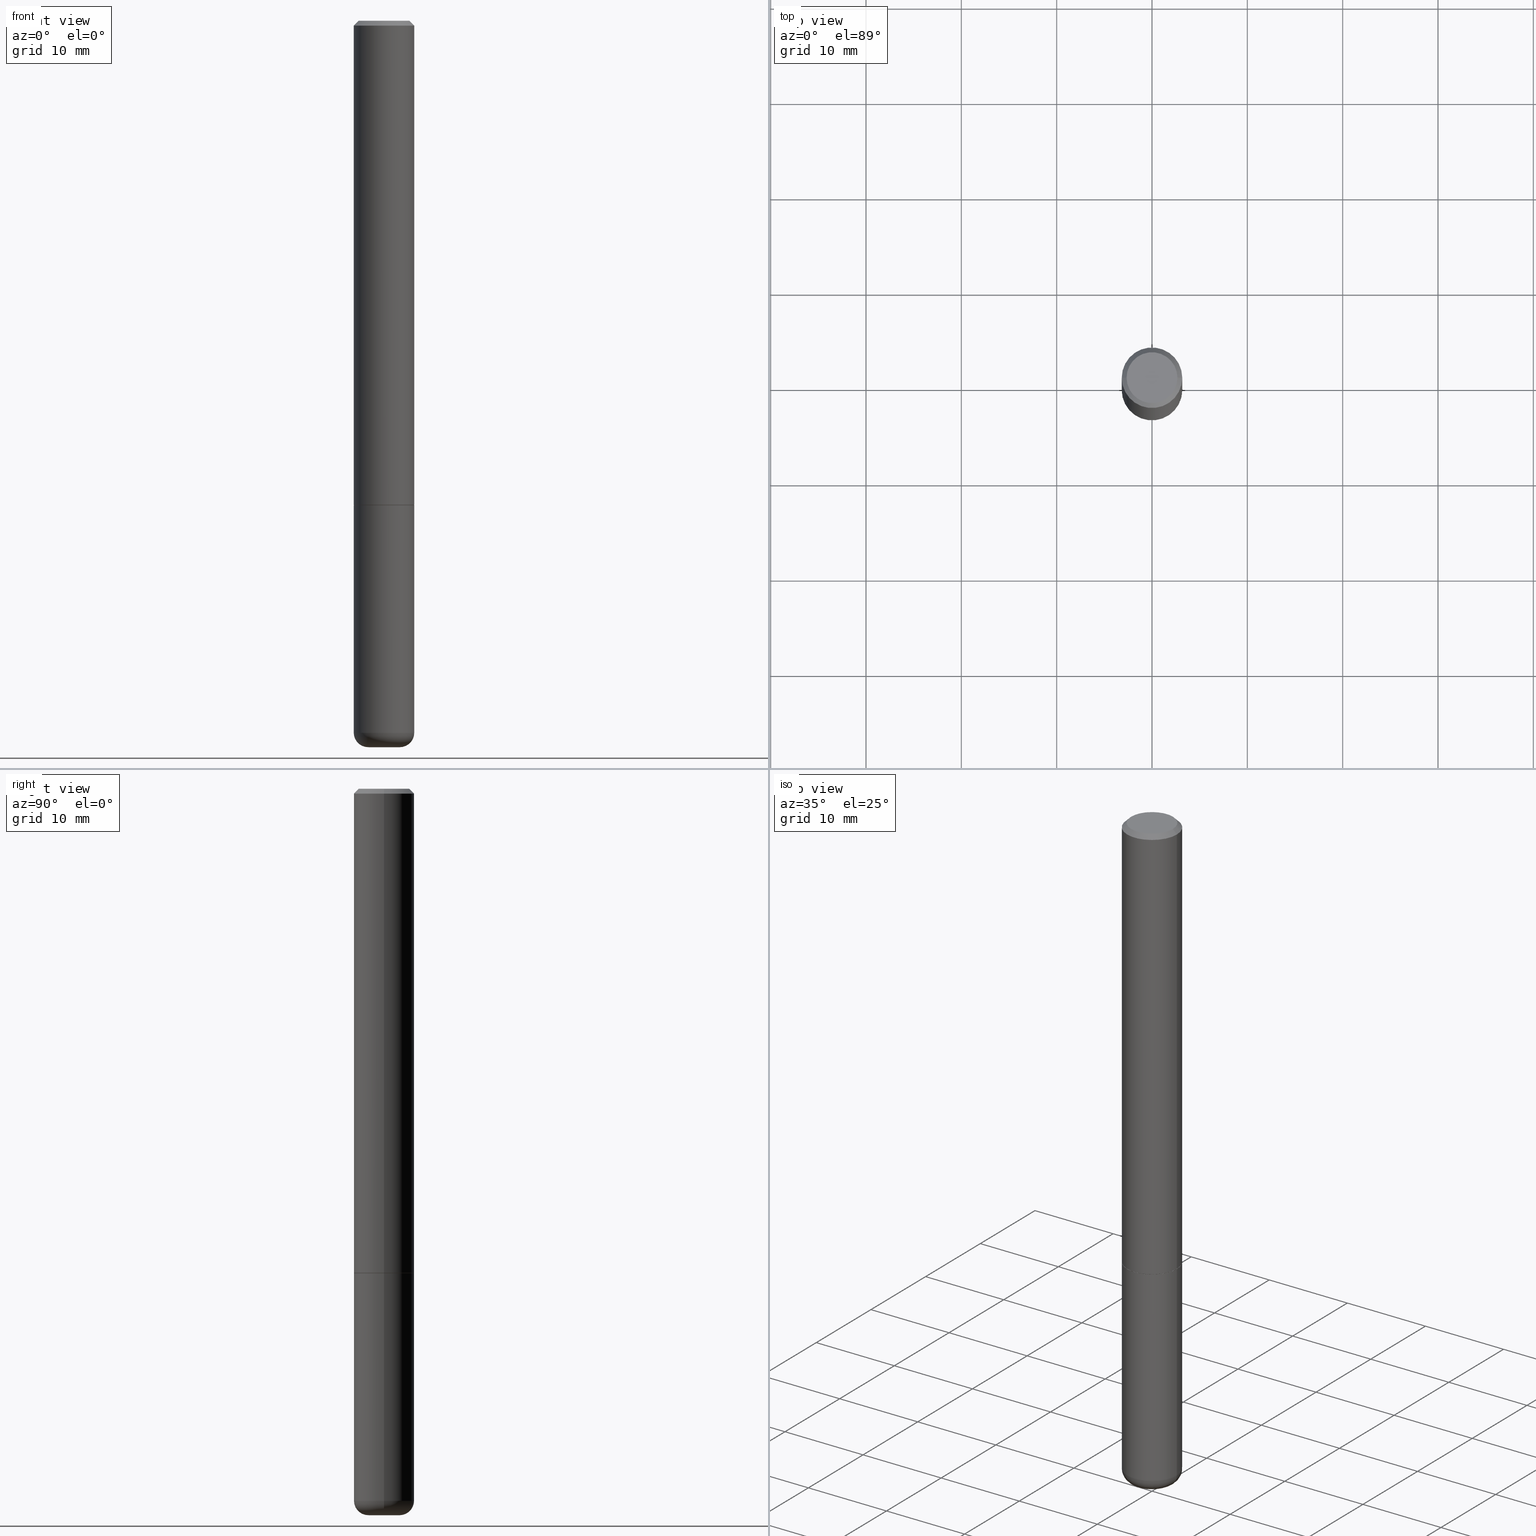
[diagram: canonical four-view strip — front | top / right | iso, engineering-drawing reading convention]
A machine part, canonical four-view strip (front | top / right | iso — engineering-drawing reading convention). The complete STEP part file that produces these views, byte-faithful:
ISO-10303-21;
HEADER;
FILE_DESCRIPTION (( 'STEP AP203' ),
    '1' );
FILE_NAME ('35674.STEP',
    '2022-11-02T20:38:54',
    ( '' ),
    ( '' ),
    'SwSTEP 2.0',
    'SolidWorks 2022',
    '' );
FILE_SCHEMA (( 'CONFIG_CONTROL_DESIGN' ));
ENDSEC;

DATA;
#1 = EDGE_CURVE ( 'NONE', #463, #370, #432, .T. ) ;
#2 = DIRECTION ( 'NONE',  ( -2.445468806185136597E-29, 3.491481338843145583E-15, 1.000000000000000000 ) ) ;
#3 = ORIENTED_EDGE ( 'NONE', *, *, #464, .T. ) ;
#4 = CALENDAR_DATE ( 2022, 2, 11 ) ;
#5 = CONICAL_SURFACE ( 'NONE', #283, 0.1249999999999993477, 0.7853981633974469467 ) ;
#6 = CARTESIAN_POINT ( 'NONE',  ( -0.1049999999999993577, 7.681258945454844472E-16, -4.268512490100935748E-17 ) ) ;
#7 = DIRECTION ( 'NONE',  ( -2.445468806185136877E-29, 3.491481338843145188E-15, 1.000000000000000000 ) ) ;
#8 = CARTESIAN_POINT ( 'NONE',  ( -0.1250000000000000278, 8.881784197001254296E-16, -6.148668862818634329E-30 ) ) ;
#9 = DIRECTION ( 'NONE',  ( 1.000000000000000000, -6.982962677686269077E-15, 0.000000000000000000 ) ) ;
#10 = VECTOR ( 'NONE', #284, 39.37007874015748143 ) ;
#11 = DIRECTION ( 'NONE',  ( -0.7071067811865232589, 7.493145998870265808E-15, 0.7071067811865715536 ) ) ;
#12 = ORIENTED_EDGE ( 'NONE', *, *, #153, .F. ) ;
#13 = EDGE_CURVE ( 'NONE', #227, #57, #423, .T. ) ;
#14 = CARTESIAN_POINT ( 'NONE',  ( 0.000000000000000000, 0.000000000000000000, 0.000000000000000000 ) ) ;
#15 = VERTEX_POINT ( 'NONE', #469 ) ;
#16 = CARTESIAN_POINT ( 'NONE',  ( -0.06447640787009813190, -9.696548138661385576E-15, -2.999999999999999556 ) ) ;
#17 = ORIENTED_EDGE ( 'NONE', *, *, #335, .T. ) ;
#18 = FACE_OUTER_BOUND ( 'NONE', #187, .T. ) ;
#19 = ADVANCED_FACE ( 'NONE', ( #385 ), #275, .T. ) ;
#20 = CIRCLE ( 'NONE', #108, 0.1049999999999993577 ) ;
#21 = APPROVAL_PERSON_ORGANIZATION ( #274, #118, #45 ) ;
#22 = PERSON_AND_ORGANIZATION ( #89, #491 ) ;
#23 = CARTESIAN_POINT ( 'NONE',  ( -0.05114390787009810008, -1.011690177945909035E-14, -2.999883649035179900 ) ) ;
#24 = EDGE_CURVE ( 'NONE', #483, #256, #232, .T. ) ;
#25 = ORIENTED_EDGE ( 'NONE', *, *, #74, .F. ) ;
#26 = CARTESIAN_POINT ( 'NONE',  ( 7.189683877141828880E-29, -1.026496311289350047E-14, -2.940002284616149097 ) ) ;
#27 = ORIENTED_EDGE ( 'NONE', *, *, #349, .T. ) ;
#28 = FACE_OUTER_BOUND ( 'NONE', #298, .T. ) ;
#29 = AXIS2_PLACEMENT_3D ( 'NONE', #205, #359, #477 ) ;
#30 = ORIENTED_EDGE ( 'NONE', *, *, #393, .F. ) ;
#31 = LOCAL_TIME ( 16, 38, 54.00000000000000000, #194 ) ;
#32 = EDGE_CURVE ( 'NONE', #282, #408, #467, .T. ) ;
#33 = CARTESIAN_POINT ( 'NONE',  ( 4.890937612370273754E-29, -6.982962677686291954E-15, -2.000000000000000444 ) ) ;
#34 = EDGE_LOOP ( 'NONE', ( #350, #440, #292, #143 ) ) ;
#35 = CARTESIAN_POINT ( 'NONE',  ( 0.1250000000000000278, -1.113783344760428224E-14, -2.940002284616149097 ) ) ;
#36 = LINE ( 'NONE', #138, #306 ) ;
#37 = AXIS2_PLACEMENT_3D ( 'NONE', #352, #200, #389 ) ;
#38 = CIRCLE ( 'NONE', #154, 0.06447640787009811802 ) ;
#39 = CIRCLE ( 'NONE', #387, 0.1250000000000000278 ) ;
#40 = CARTESIAN_POINT ( 'NONE',  ( 0.1049999999999993577, -8.238720831321533257E-16, -4.268512490099867088E-17 ) ) ;
#41 = CC_DESIGN_PERSON_AND_ORGANIZATION_ASSIGNMENT ( #117, #43, ( #411 ) ) ;
#42 = ORIENTED_EDGE ( 'NONE', *, *, #422, .T. ) ;
#43 = PERSON_AND_ORGANIZATION_ROLE ( 'creator' ) ;
#44 = DIRECTION ( 'NONE',  ( -2.445468806185136597E-29, 3.491481338843145583E-15, 1.000000000000000000 ) ) ;
#45 = APPROVAL_ROLE ( '' ) ;
#46 = CIRCLE ( 'NONE', #319, 0.1240000000000000269 ) ;
#47 = CARTESIAN_POINT ( 'NONE',  ( 8.728703347108323468E-16, 0.1249999999999930472, -2.000000000000000888 ) ) ;
#48 = APPROVAL_ROLE ( '' ) ;
#49 = PERSON_AND_ORGANIZATION ( #89, #491 ) ;
#50 = DIRECTION ( 'NONE',  ( -1.000000000000000000, 6.982962677686270655E-15, 0.000000000000000000 ) ) ;
#51 = DESIGN_CONTEXT ( 'detailed design', #152, 'design' ) ;
#52 = ADVANCED_FACE ( 'NONE', ( #78 ), #428, .F. ) ;
#53 = VECTOR ( 'NONE', #456, 39.37007874015748854 ) ;
#54 = DIRECTION ( 'NONE',  ( 1.000000000000000000, -6.982962677686271444E-15, 0.000000000000000000 ) ) ;
#55 = EDGE_CURVE ( 'NONE', #370, #408, #443, .T. ) ;
#56 = DIRECTION ( 'NONE',  ( 1.000000000000000000, -6.982962677686269077E-15, 0.000000000000000000 ) ) ;
#57 = VERTEX_POINT ( 'NONE', #421 ) ;
#58 = CARTESIAN_POINT ( 'NONE',  ( 7.336406418555408669E-29, -1.047444401652943478E-14, -2.999999999999999556 ) ) ;
#59 = DIRECTION ( 'NONE',  ( -0.7071067811865465735, 2.468850131082246805E-15, -0.7071067811865484609 ) ) ;
#60 = AXIS2_PLACEMENT_3D ( 'NONE', #99, #254, #184 ) ;
#61 = LOCAL_TIME ( 16, 38, 54.00000000000000000, #286 ) ;
#62 = ORIENTED_EDGE ( 'NONE', *, *, #255, .T. ) ;
#63 = FACE_OUTER_BOUND ( 'NONE', #70, .T. ) ;
#64 = ORIENTED_EDGE ( 'NONE', *, *, #150, .T. ) ;
#65 = DIRECTION ( 'NONE',  ( -2.445468806185136597E-29, 3.491481338843145583E-15, 1.000000000000000000 ) ) ;
#66 = EDGE_LOOP ( 'NONE', ( #417, #419, #177, #372 ) ) ;
#67 = ADVANCED_FACE ( 'NONE', ( #84 ), #191, .F. ) ;
#68 = DIRECTION ( 'NONE',  ( -2.445468806185136597E-29, 3.491481338843145583E-15, 1.000000000000000000 ) ) ;
#69 = AXIS2_PLACEMENT_3D ( 'NONE', #157, #316, #197 ) ;
#70 = EDGE_LOOP ( 'NONE', ( #170, #219, #42, #348 ) ) ;
#71 = LINE ( 'NONE', #449, #53 ) ;
#72 = DIRECTION ( 'NONE',  ( -1.000000000000000000, 6.982962677686265922E-15, 0.000000000000000000 ) ) ;
#73 = DIRECTION ( 'NONE',  ( 0.7071067811865232589, -2.468850131082003836E-15, 0.7071067811865715536 ) ) ;
#74 = EDGE_CURVE ( 'NONE', #57, #210, #267, .T. ) ;
#75 = VECTOR ( 'NONE', #59, 39.37007874015748143 ) ;
#76 = CARTESIAN_POINT ( 'NONE',  ( 0.06447640787009811802, -1.092468036627760736E-14, -2.999999999999999556 ) ) ;
#77 = ORIENTED_EDGE ( 'NONE', *, *, #277, .F. ) ;
#78 = FACE_OUTER_BOUND ( 'NONE', #204, .T. ) ;
#79 = ADVANCED_FACE ( 'NONE', ( #430 ), #395, .T. ) ;
#80 = SECURITY_CLASSIFICATION_LEVEL ( 'unclassified' ) ;
#81 = DIRECTION ( 'NONE',  ( 2.445468806185136597E-29, -3.491481338843145583E-15, -1.000000000000000000 ) ) ;
#82 = AXIS2_PLACEMENT_3D ( 'NONE', #318, #366, #166 ) ;
#83 = PERSON_AND_ORGANIZATION ( #89, #491 ) ;
#84 = FACE_OUTER_BOUND ( 'NONE', #190, .T. ) ;
#85 = DATE_AND_TIME ( #420, #193 ) ;
#86 = DIRECTION ( 'NONE',  ( -6.982962677686266711E-15, -1.000000000000000000, 3.491481338843145583E-15 ) ) ;
#87 = DATE_AND_TIME ( #429, #290 ) ;
#88 = FACE_OUTER_BOUND ( 'NONE', #406, .T. ) ;
#89 = PERSON ( 'UNSPECIFIED', 'UNSPECIFIED', 'UNSPECIFIED', ('UNSPECIFIED'), ('UNSPECIFIED'), ('UNSPECIFIED') ) ;
#90 = CONICAL_SURFACE ( 'NONE', #225, 0.06447640787009811802, 1.562069680534970972 ) ;
#91 = PLANE ( 'NONE',  #476 ) ;
#92 = DIRECTION ( 'NONE',  ( 1.000000000000000000, -6.982962677686267499E-15, 4.883557194083112901E-29 ) ) ;
#93 = CARTESIAN_POINT ( 'NONE',  ( 7.336121885900372411E-29, -1.047403777930701143E-14, -2.999883649035179900 ) ) ;
#94 = ORIENTED_EDGE ( 'NONE', *, *, #433, .T. ) ;
#95 = FACE_OUTER_BOUND ( 'NONE', #129, .T. ) ;
#96 = ORIENTED_EDGE ( 'NONE', *, *, #380, .T. ) ;
#97 = CARTESIAN_POINT ( 'NONE',  ( -0.1250000000000000278, -2.636471991862020635E-15, -1.999000000000000110 ) ) ;
#98 = ORIENTED_EDGE ( 'NONE', *, *, #32, .T. ) ;
#99 = CARTESIAN_POINT ( 'NONE',  ( 7.336121885900372411E-29, -1.047403777930701143E-14, -2.999883649035179900 ) ) ;
#100 = EDGE_LOOP ( 'NONE', ( #17, #98, #410, #353 ) ) ;
#101 = DIRECTION ( 'NONE',  ( -2.445468806185136597E-29, 3.491481338843145583E-15, 1.000000000000000000 ) ) ;
#102 = VECTOR ( 'NONE', #400, 39.37007874015748143 ) ;
#103 = EDGE_LOOP ( 'NONE', ( #149, #179, #465, #30 ) ) ;
#104 = FACE_OUTER_BOUND ( 'NONE', #243, .T. ) ;
#105 = ADVANCED_FACE ( 'NONE', ( #472 ), #139, .T. ) ;
#106 = DIRECTION ( 'NONE',  ( -2.445468806185136597E-29, 3.491481338843145583E-15, 1.000000000000000000 ) ) ;
#107 = CARTESIAN_POINT ( 'NONE',  ( 4.890937612370295054E-31, -6.982962677686322424E-17, -0.02000000000000009062 ) ) ;
#108 = AXIS2_PLACEMENT_3D ( 'NONE', #373, #333, #258 ) ;
#109 = DIRECTION ( 'NONE',  ( 0.000000000000000000, 0.000000000000000000, 1.000000000000000000 ) ) ;
#110 = DIRECTION ( 'NONE',  ( 1.000000000000000000, -6.982962677686269077E-15, 0.000000000000000000 ) ) ;
#111 = DIRECTION ( 'NONE',  ( -2.445468806185136597E-29, 3.491481338843145583E-15, 1.000000000000000000 ) ) ;
#112 = MECHANICAL_CONTEXT ( 'NONE', #228, 'mechanical' ) ;
#113 = VERTEX_POINT ( 'NONE', #195 ) ;
#114 = DATE_AND_TIME ( #266, #176 ) ;
#115 = DIRECTION ( 'NONE',  ( 1.000000000000000000, -6.982962677686267499E-15, 4.876176775795935793E-29 ) ) ;
#116 = PRODUCT ( '35674', '35674', '', ( #112 ) ) ;
#117 = PERSON_AND_ORGANIZATION ( #89, #491 ) ;
#118 = APPROVAL ( #337, 'UNSPECIFIED' ) ;
#119 = DIRECTION ( 'NONE',  ( -2.445468806185136597E-29, 3.491481338843145583E-15, 1.000000000000000000 ) ) ;
#120 = EDGE_LOOP ( 'NONE', ( #356, #445, #403, #331 ) ) ;
#121 = DIRECTION ( 'NONE',  ( -2.445468806185136597E-29, 3.491481338843145583E-15, 1.000000000000000000 ) ) ;
#122 = AXIS2_PLACEMENT_3D ( 'NONE', #425, #238, #392 ) ;
#123 = AXIS2_PLACEMENT_3D ( 'NONE', #332, #371, #413 ) ;
#124 = CARTESIAN_POINT ( 'NONE',  ( 0.1249999999999993477, -9.273918764983002075E-16, -0.02000000000000009062 ) ) ;
#125 = CC_DESIGN_PERSON_AND_ORGANIZATION_ASSIGNMENT ( #199, #186, ( #116 ) ) ;
#126 = LINE ( 'NONE', #285, #145 ) ;
#127 = CALENDAR_DATE ( 2022, 2, 11 ) ;
#128 = CARTESIAN_POINT ( 'NONE',  ( 4.890937612370295054E-31, -6.982962677686322424E-17, -0.02000000000000009062 ) ) ;
#129 = EDGE_LOOP ( 'NONE', ( #64, #390, #450, #216 ) ) ;
#130 = ADVANCED_FACE ( 'NONE', ( #88 ), #355, .T. ) ;
#131 = DIRECTION ( 'NONE',  ( 1.000000000000000000, -6.982962677686269077E-15, 0.000000000000000000 ) ) ;
#132 = AXIS2_PLACEMENT_3D ( 'NONE', #404, #212, #447 ) ;
#133 = VERTEX_POINT ( 'NONE', #6 ) ;
#134 = DIRECTION ( 'NONE',  ( 1.000000000000000000, -6.982962677686267499E-15, 4.874400871621268483E-29 ) ) ;
#135 = VERTEX_POINT ( 'NONE', #346 ) ;
#136 = FACE_OUTER_BOUND ( 'NONE', #34, .T. ) ;
#137 = ORIENTED_EDGE ( 'NONE', *, *, #24, .T. ) ;
#138 = CARTESIAN_POINT ( 'NONE',  ( -0.05114390787009810008, -1.011690177945909035E-14, -2.999883649035179900 ) ) ;
#139 = CONICAL_SURFACE ( 'NONE', #248, 0.1240000000000000269, 0.7853981633974141952 ) ;
#140 = DIRECTION ( 'NONE',  ( 1.000000000000000000, -6.982962677686269077E-15, 0.000000000000000000 ) ) ;
#141 = CARTESIAN_POINT ( 'NONE',  ( 0.1240000000000000269, -7.848850049719389279E-15, -2.000000000000000444 ) ) ;
#142 = ADVANCED_FACE ( 'NONE', ( #147 ), #424, .T. ) ;
#143 = ORIENTED_EDGE ( 'NONE', *, *, #381, .T. ) ;
#144 = CLOSED_SHELL ( 'NONE', ( #295, #79, #19, #302, #67, #52, #220, #142, #250 ) ) ;
#145 = VECTOR ( 'NONE', #317, 39.37007874015748143 ) ;
#146 = DIRECTION ( 'NONE',  ( 1.000000000000000000, 0.000000000000000000, 0.000000000000000000 ) ) ;
#147 = FACE_OUTER_BOUND ( 'NONE', #66, .T. ) ;
#148 = LENGTH_MEASURE_WITH_UNIT ( LENGTH_MEASURE( 0.02539999999999999897 ), #339 );
#149 = ORIENTED_EDGE ( 'NONE', *, *, #13, .T. ) ;
#150 = EDGE_CURVE ( 'NONE', #151, #329, #192, .T. ) ;
#151 = VERTEX_POINT ( 'NONE', #23 ) ;
#152 = APPLICATION_CONTEXT ( 'configuration controlled 3d designs of mechanical parts and assemblies' ) ;
#153 = EDGE_CURVE ( 'NONE', #256, #296, #207, .T. ) ;
#154 = AXIS2_PLACEMENT_3D ( 'NONE', #58, #121, #357 ) ;
#155 = PERSON_AND_ORGANIZATION_ROLE ( 'classification_officer' ) ;
#156 = CC_DESIGN_APPROVAL ( #427, ( #163 ) ) ;
#157 = CARTESIAN_POINT ( 'NONE',  ( 7.189683877141828880E-29, -1.026496311289350047E-14, -2.940002284616149097 ) ) ;
#158 = APPROVAL_ROLE ( '' ) ;
#159 = LINE ( 'NONE', #244, #10 ) ;
#160 = EDGE_LOOP ( 'NONE', ( #279, #137, #246, #167 ) ) ;
#161 = DATE_TIME_ROLE ( 'classification_date' ) ;
#162 = FACE_OUTER_BOUND ( 'NONE', #479, .T. ) ;
#163 = PRODUCT_DEFINITION ( 'UNKNOWN', '', #411, #51 ) ;
#164 = VECTOR ( 'NONE', #181, 39.37007874015748854 ) ;
#165 = CIRCLE ( 'NONE', #29, 0.1250000000000000278 ) ;
#166 = DIRECTION ( 'NONE',  ( 1.000000000000000000, -6.982962677686267499E-15, 4.876176775795935793E-29 ) ) ;
#167 = ORIENTED_EDGE ( 'NONE', *, *, #281, .F. ) ;
#168 = DIRECTION ( 'NONE',  ( -2.438088387897960049E-29, 3.491481338843145188E-15, 1.000000000000000000 ) ) ;
#169 = ADVANCED_FACE ( 'NONE', ( #18 ), #287, .F. ) ;
#170 = ORIENTED_EDGE ( 'NONE', *, *, #367, .F. ) ;
#171 = FACE_OUTER_BOUND ( 'NONE', #448, .T. ) ;
#172 = ORIENTED_EDGE ( 'NONE', *, *, #340, .T. ) ;
#173 = EDGE_CURVE ( 'NONE', #282, #463, #38, .T. ) ;
#174 = DIRECTION ( 'NONE',  ( 1.000000000000000000, -6.982962677686265922E-15, 0.000000000000000000 ) ) ;
#175 = AXIS2_PLACEMENT_3D ( 'NONE', #221, #68, #140 ) ;
#176 = LOCAL_TIME ( 16, 38, 54.00000000000000000, #315 ) ;
#177 = ORIENTED_EDGE ( 'NONE', *, *, #1, .T. ) ;
#178 = DIRECTION ( 'NONE',  ( 1.000000000000000000, -6.982962677686269077E-15, 0.000000000000000000 ) ) ;
#179 = ORIENTED_EDGE ( 'NONE', *, *, #74, .T. ) ;
#180 = CARTESIAN_POINT ( 'NONE',  ( 4.890937612370295054E-31, -6.982962677686322424E-17, -0.02000000000000009062 ) ) ;
#181 = DIRECTION ( 'NONE',  ( -0.9999619230641716427, 6.952228252019333330E-15, -0.008726535498327935014 ) ) ;
#182 = AXIS2_PLACEMENT_3D ( 'NONE', #492, #412, #134 ) ;
#183 = CC_DESIGN_SECURITY_CLASSIFICATION ( #446, ( #411 ) ) ;
#184 = DIRECTION ( 'NONE',  ( -1.000000000000000000, 6.982962677686270655E-15, 0.000000000000000000 ) ) ;
#185 = ADVANCED_FACE ( 'NONE', ( #162 ), #91, .F. ) ;
#186 = PERSON_AND_ORGANIZATION_ROLE ( 'design_owner' ) ;
#187 = EDGE_LOOP ( 'NONE', ( #172, #206 ) ) ;
#188 = CC_DESIGN_DATE_AND_TIME_ASSIGNMENT ( #87, #161, ( #446 ) ) ;
#189 = PERSON_AND_ORGANIZATION_ROLE ( 'design_supplier' ) ;
#190 = EDGE_LOOP ( 'NONE', ( #77, #3, #239 ) ) ;
#191 = CONICAL_SURFACE ( 'NONE', #475, 0.05114390787009810008, 1.535889741755004367 ) ;
#192 = CIRCLE ( 'NONE', #289, 0.05114390787009810008 ) ;
#193 = LOCAL_TIME ( 16, 38, 54.00000000000000000, #426 ) ;
#194 = COORDINATED_UNIVERSAL_TIME_OFFSET ( 5, 0, .BEHIND. ) ;
#195 = CARTESIAN_POINT ( 'NONE',  ( 7.331754316229610126E-29, -1.046780204734306267E-14, -2.998097664417540997 ) ) ;
#196 = APPLICATION_PROTOCOL_DEFINITION ( 'international standard', 'config_control_design', 1994, #152 ) ;
#197 = DIRECTION ( 'NONE',  ( 1.000000000000000000, -6.982962677686267499E-15, 4.883557194083112901E-29 ) ) ;
#198 = ORIENTED_EDGE ( 'NONE', *, *, #381, .F. ) ;
#199 = PERSON_AND_ORGANIZATION ( #89, #491 ) ;
#200 = DIRECTION ( 'NONE',  ( 7.105427357601001859E-15, 1.000000000000000000, -3.491481338843145583E-15 ) ) ;
#201 = CARTESIAN_POINT ( 'NONE',  ( 0.1249999999999993477, -9.273918764983002075E-16, -0.02000000000000009062 ) ) ;
#202 = APPROVAL ( #211, 'UNSPECIFIED' ) ;
#203 = CARTESIAN_POINT ( 'NONE',  ( -0.1249999999999993477, 8.030407079339155047E-16, -0.02000000000000009062 ) ) ;
#204 = EDGE_LOOP ( 'NONE', ( #62, #94 ) ) ;
#205 = CARTESIAN_POINT ( 'NONE',  ( 7.189683877141828880E-29, -1.026496311289350047E-14, -2.940002284616149097 ) ) ;
#206 = ORIENTED_EDGE ( 'NONE', *, *, #310, .T. ) ;
#207 = CIRCLE ( 'NONE', #454, 0.1249999999999993477 ) ;
#208 =( GEOMETRIC_REPRESENTATION_CONTEXT ( 3 ) GLOBAL_UNCERTAINTY_ASSIGNED_CONTEXT ( ( #347 ) ) GLOBAL_UNIT_ASSIGNED_CONTEXT ( ( #351, #308, #311 ) ) REPRESENTATION_CONTEXT ( 'NONE', 'WORKASPACE' ) );
#209 = DIRECTION ( 'NONE',  ( -1.000000000000000000, 6.982962677686265922E-15, -4.876176775795935793E-29 ) ) ;
#210 = VERTEX_POINT ( 'NONE', #97 ) ;
#211 = APPROVAL_STATUS ( 'not_yet_approved' ) ;
#212 = DIRECTION ( 'NONE',  ( 2.445468806185136597E-29, -3.491481338843145583E-15, -1.000000000000000000 ) ) ;
#213 = CC_DESIGN_DATE_AND_TIME_ASSIGNMENT ( #114, #391, ( #163 ) ) ;
#214 = VERTEX_POINT ( 'NONE', #249 ) ;
#215 = LINE ( 'NONE', #438, #102 ) ;
#216 = ORIENTED_EDGE ( 'NONE', *, *, #422, .F. ) ;
#217 = FACE_OUTER_BOUND ( 'NONE', #160, .T. ) ;
#218 = VECTOR ( 'NONE', #73, 39.37007874015748854 ) ;
#219 = ORIENTED_EDGE ( 'NONE', *, *, #405, .T. ) ;
#220 = ADVANCED_FACE ( 'NONE', ( #171 ), #481, .T. ) ;
#221 = CARTESIAN_POINT ( 'NONE',  ( 4.888492143564088712E-29, -6.979471196347448158E-15, -1.999000000000000110 ) ) ;
#222 = CARTESIAN_POINT ( 'NONE',  ( -0.1250000000000000278, -7.735784475589770982E-15, -2.940002284616149097 ) ) ;
#223 = DIRECTION ( 'NONE',  ( -2.445468806185136597E-29, 3.491481338843145583E-15, 1.000000000000000000 ) ) ;
#224 = VECTOR ( 'NONE', #11, 39.37007874015748854 ) ;
#225 = AXIS2_PLACEMENT_3D ( 'NONE', #407, #245, #442 ) ;
#226 = DIRECTION ( 'NONE',  ( -0.9993908270190955401, 6.856857904024535960E-15, -0.03489949670250663133 ) ) ;
#227 = VERTEX_POINT ( 'NONE', #242 ) ;
#228 = APPLICATION_CONTEXT ( 'configuration controlled 3d designs of mechanical parts and assemblies' ) ;
#229 = APPROVAL_DATE_TIME ( #269, #427 ) ;
#230 = CARTESIAN_POINT ( 'NONE',  ( -0.1240000000000000269, -6.101889685343766941E-15, -2.000000000000000444 ) ) ;
#231 = LINE ( 'NONE', #8, #470 ) ;
#232 = LINE ( 'NONE', #201, #341 ) ;
#233 = AXIS2_PLACEMENT_3D ( 'NONE', #270, #111, #9 ) ;
#234 = AXIS2_PLACEMENT_3D ( 'NONE', #252, #478, #131 ) ;
#235 = APPROVAL_STATUS ( 'not_yet_approved' ) ;
#236 = CARTESIAN_POINT ( 'NONE',  ( 0.000000000000000000, 0.000000000000000000, 0.000000000000000000 ) ) ;
#237 = APPLICATION_PROTOCOL_DEFINITION ( 'international standard', 'config_control_design', 1994, #228 ) ;
#238 = DIRECTION ( 'NONE',  ( -2.445468806185136597E-29, 3.491481338843145583E-15, 1.000000000000000000 ) ) ;
#239 = ORIENTED_EDGE ( 'NONE', *, *, #405, .F. ) ;
#240 = AXIS2_PLACEMENT_3D ( 'NONE', #26, #473, #92 ) ;
#241 = CC_DESIGN_APPROVAL ( #118, ( #411 ) ) ;
#242 = CARTESIAN_POINT ( 'NONE',  ( 0.1240000000000000269, -7.848850049719389279E-15, -2.000000000000000444 ) ) ;
#243 = EDGE_LOOP ( 'NONE', ( #96, #368, #12, #488 ) ) ;
#244 = CARTESIAN_POINT ( 'NONE',  ( 0.1250000000000000278, -8.728703347107836346E-16, 6.095220969744921142E-30 ) ) ;
#245 = DIRECTION ( 'NONE',  ( 2.445468806185136597E-29, -3.491481338843145583E-15, -1.000000000000000000 ) ) ;
#246 = ORIENTED_EDGE ( 'NONE', *, *, #153, .T. ) ;
#247 = AXIS2_PLACEMENT_3D ( 'NONE', #236, #44, #115 ) ;
#248 = AXIS2_PLACEMENT_3D ( 'NONE', #383, #119, #110 ) ;
#249 = CARTESIAN_POINT ( 'NONE',  ( 0.1250000000000000278, -7.855833012397075293E-15, -2.000000000000000444 ) ) ;
#250 = ADVANCED_FACE ( 'NONE', ( #63 ), #90, .F. ) ;
#251 = ORIENTED_EDGE ( 'NONE', *, *, #349, .F. ) ;
#252 = CARTESIAN_POINT ( 'NONE',  ( 4.890937612370273754E-29, -6.982962677686291954E-15, -2.000000000000000444 ) ) ;
#253 = ORIENTED_EDGE ( 'NONE', *, *, #464, .F. ) ;
#254 = DIRECTION ( 'NONE',  ( 2.445468806185136597E-29, -3.491481338843145583E-15, -1.000000000000000000 ) ) ;
#255 = EDGE_CURVE ( 'NONE', #214, #15, #444, .T. ) ;
#256 = VERTEX_POINT ( 'NONE', #124 ) ;
#257 = EDGE_CURVE ( 'NONE', #370, #214, #159, .T. ) ;
#258 = DIRECTION ( 'NONE',  ( 1.000000000000000000, -6.982962677686267499E-15, 4.874400871621268483E-29 ) ) ;
#259 = CYLINDRICAL_SURFACE ( 'NONE', #396, 0.1249999999999996947 ) ;
#260 = EDGE_CURVE ( 'NONE', #408, #370, #165, .T. ) ;
#261 = CARTESIAN_POINT ( 'NONE',  ( 0.000000000000000000, 0.000000000000000000, 0.000000000000000000 ) ) ;
#262 = CARTESIAN_POINT ( 'NONE',  ( 0.05114390787009810008, -1.082491045684803144E-14, -2.999883649035179900 ) ) ;
#263 = ORIENTED_EDGE ( 'NONE', *, *, #433, .F. ) ;
#264 = AXIS2_PLACEMENT_3D ( 'NONE', #297, #101, #293 ) ;
#265 = DIRECTION ( 'NONE',  ( 1.000000000000000000, -6.982962677686266711E-15, 4.876176775795935793E-29 ) ) ;
#266 = CALENDAR_DATE ( 2022, 2, 11 ) ;
#267 = LINE ( 'NONE', #230, #224 ) ;
#268 = EDGE_CURVE ( 'NONE', #210, #296, #126, .T. ) ;
#269 = DATE_AND_TIME ( #4, #31 ) ;
#270 = CARTESIAN_POINT ( 'NONE',  ( 4.890937612370273754E-29, -6.982962677686291954E-15, -2.000000000000000444 ) ) ;
#271 = MANIFOLD_SOLID_BREP ( 'Body-Move/Copy2[1]', #144 ) ;
#272 = CONICAL_SURFACE ( 'NONE', #60, 0.05114390787009810008, 1.535889741755004367 ) ;
#273 = APPROVAL_PERSON_ORGANIZATION ( #471, #427, #48 ) ;
#274 = PERSON_AND_ORGANIZATION ( #89, #491 ) ;
#275 = CYLINDRICAL_SURFACE ( 'NONE', #247, 0.1250000000000000278 ) ;
#276 = COORDINATED_UNIVERSAL_TIME_OFFSET ( 5, 0, .BEHIND. ) ;
#277 = EDGE_CURVE ( 'NONE', #113, #329, #215, .T. ) ;
#278 = DIRECTION ( 'NONE',  ( 0.7071067811865465735, -7.319954787623252890E-15, -0.7071067811865484609 ) ) ;
#279 = ORIENTED_EDGE ( 'NONE', *, *, #310, .F. ) ;
#280 = DIRECTION ( 'NONE',  ( 1.000000000000000000, -6.982962677686265922E-15, 0.000000000000000000 ) ) ;
#281 = EDGE_CURVE ( 'NONE', #133, #296, #325, .T. ) ;
#282 = VERTEX_POINT ( 'NONE', #16 ) ;
#283 = AXIS2_PLACEMENT_3D ( 'NONE', #336, #301, #72 ) ;
#284 = DIRECTION ( 'NONE',  ( -2.445468806185136877E-29, 3.491481338843145188E-15, 1.000000000000000000 ) ) ;
#285 = CARTESIAN_POINT ( 'NONE',  ( -0.1249999999999996947, 8.881784197001230630E-16, -6.148668862818616813E-30 ) ) ;
#286 = COORDINATED_UNIVERSAL_TIME_OFFSET ( 5, 0, .BEHIND. ) ;
#287 = PLANE ( 'NONE',  #455 ) ;
#288 = ORIENTED_EDGE ( 'NONE', *, *, #268, .F. ) ;
#289 = AXIS2_PLACEMENT_3D ( 'NONE', #93, #291, #431 ) ;
#290 = LOCAL_TIME ( 16, 38, 54.00000000000000000, #276 ) ;
#291 = DIRECTION ( 'NONE',  ( -2.445468806185136597E-29, 3.491481338843145583E-15, 1.000000000000000000 ) ) ;
#292 = ORIENTED_EDGE ( 'NONE', *, *, #281, .T. ) ;
#293 = DIRECTION ( 'NONE',  ( 1.000000000000000000, -6.982962677686269077E-15, 0.000000000000000000 ) ) ;
#294 = ADVANCED_FACE ( 'NONE', ( #364 ), #434, .T. ) ;
#295 = ADVANCED_FACE ( 'NONE', ( #95 ), #386, .F. ) ;
#296 = VERTEX_POINT ( 'NONE', #369 ) ;
#297 = CARTESIAN_POINT ( 'NONE',  ( 4.888492143564088712E-29, -6.979471196347448158E-15, -1.999000000000000110 ) ) ;
#298 = EDGE_LOOP ( 'NONE', ( #253, #379, #361 ) ) ;
#299 = DIRECTION ( 'NONE',  ( 1.000000000000000000, -6.982962677686269077E-15, 0.000000000000000000 ) ) ;
#300 = ADVANCED_FACE ( 'NONE', ( #136 ), #334, .T. ) ;
#301 = DIRECTION ( 'NONE',  ( 2.445468806185136597E-29, -3.491481338843145583E-15, -1.000000000000000000 ) ) ;
#302 = ADVANCED_FACE ( 'NONE', ( #28 ), #272, .F. ) ;
#303 = LINE ( 'NONE', #489, #462 ) ;
#304 = DIRECTION ( 'NONE',  ( -2.445468806185136597E-29, 3.491481338843145583E-15, 1.000000000000000000 ) ) ;
#305 = AXIS2_PLACEMENT_3D ( 'NONE', #180, #2, #174 ) ;
#306 = VECTOR ( 'NONE', #226, 39.37007874015748143 ) ;
#307 = DIMENSIONAL_EXPONENTS ( 1.000000000000000000, 0.000000000000000000, 0.000000000000000000, 0.000000000000000000, 0.000000000000000000, 0.000000000000000000, 0.000000000000000000 ) ;
#308 =( NAMED_UNIT ( * ) PLANE_ANGLE_UNIT ( ) SI_UNIT ( $, .RADIAN. ) );
#309 = DIRECTION ( 'NONE',  ( -1.000000000000000000, 6.982962677686265922E-15, -4.876176775795935793E-29 ) ) ;
#310 = EDGE_CURVE ( 'NONE', #483, #133, #20, .T. ) ;
#311 =( NAMED_UNIT ( * ) SI_UNIT ( $, .STERADIAN. ) SOLID_ANGLE_UNIT ( ) );
#312 = CARTESIAN_POINT ( 'NONE',  ( 0.06500000000000022427, -1.071885568694310876E-14, -2.940002284616149097 ) ) ;
#313 = EDGE_LOOP ( 'NONE', ( #25, #365, #338, #251 ) ) ;
#314 = APPROVAL_PERSON_ORGANIZATION ( #22, #202, #158 ) ;
#315 = COORDINATED_UNIVERSAL_TIME_OFFSET ( 5, 0, .BEHIND. ) ;
#316 = DIRECTION ( 'NONE',  ( -2.445468806185136597E-29, 3.491481338843145583E-15, 1.000000000000000000 ) ) ;
#317 = DIRECTION ( 'NONE',  ( -2.445468806185136877E-29, 3.491481338843145188E-15, 1.000000000000000000 ) ) ;
#318 = CARTESIAN_POINT ( 'NONE',  ( 0.000000000000000000, 0.000000000000000000, 0.000000000000000000 ) ) ;
#319 = AXIS2_PLACEMENT_3D ( 'NONE', #33, #106, #299 ) ;
#320 = APPROVAL_DATE_TIME ( #441, #202 ) ;
#321 = CARTESIAN_POINT ( 'NONE',  ( 4.890937612370273754E-29, -6.982962677686291954E-15, -2.000000000000000444 ) ) ;
#322 = CC_DESIGN_PERSON_AND_ORGANIZATION_ASSIGNMENT ( #345, #384, ( #163 ) ) ;
#323 = DIRECTION ( 'NONE',  ( 1.000000000000000000, -6.982962677686265922E-15, 4.876176775795935793E-29 ) ) ;
#324 = ORIENTED_EDGE ( 'NONE', *, *, #418, .F. ) ;
#325 = LINE ( 'NONE', #203, #75 ) ;
#326 = ORIENTED_EDGE ( 'NONE', *, *, #13, .F. ) ;
#327 = CIRCLE ( 'NONE', #175, 0.1250000000000000278 ) ;
#328 = DIRECTION ( 'NONE',  ( -1.000000000000000000, 6.982962677686265922E-15, 0.000000000000000000 ) ) ;
#329 = VERTEX_POINT ( 'NONE', #262 ) ;
#330 = DIRECTION ( 'NONE',  ( 2.445468806185136597E-29, -3.491481338843145583E-15, -1.000000000000000000 ) ) ;
#331 = ORIENTED_EDGE ( 'NONE', *, *, #257, .F. ) ;
#332 = CARTESIAN_POINT ( 'NONE',  ( 7.336121885900372411E-29, -1.047403777930701143E-14, -2.999883649035179900 ) ) ;
#333 = DIRECTION ( 'NONE',  ( -2.445468806185136597E-29, 3.491481338843145583E-15, 1.000000000000000000 ) ) ;
#334 = CONICAL_SURFACE ( 'NONE', #416, 0.1249999999999993477, 0.7853981633974469467 ) ;
#335 = EDGE_CURVE ( 'NONE', #463, #282, #482, .T. ) ;
#336 = CARTESIAN_POINT ( 'NONE',  ( 4.890937612370295054E-31, -6.982962677686322424E-17, -0.02000000000000009062 ) ) ;
#337 = APPROVAL_STATUS ( 'not_yet_approved' ) ;
#338 = ORIENTED_EDGE ( 'NONE', *, *, #393, .T. ) ;
#339 =( LENGTH_UNIT ( ) NAMED_UNIT ( * ) SI_UNIT ( $, .METRE. ) );
#340 = EDGE_CURVE ( 'NONE', #133, #483, #402, .T. ) ;
#341 = VECTOR ( 'NONE', #278, 39.37007874015748143 ) ;
#342 = ADVANCED_BREP_SHAPE_REPRESENTATION ( '35674', ( #271, #439, #362 ), #208 ) ;
#343 = CARTESIAN_POINT ( 'NONE',  ( 7.336121885900372411E-29, -1.047403777930701143E-14, -2.999883649035179900 ) ) ;
#344 = CIRCLE ( 'NONE', #123, 0.05114390787009810008 ) ;
#345 = PERSON_AND_ORGANIZATION ( #89, #491 ) ;
#346 = CARTESIAN_POINT ( 'NONE',  ( 0.1250000000000000278, -7.852341531058232286E-15, -1.999000000000000110 ) ) ;
#347 = UNCERTAINTY_MEASURE_WITH_UNIT (LENGTH_MEASURE( 1.000000000000000082E-05 ), #351, 'distance_accuracy_value', 'NONE');
#348 = ORIENTED_EDGE ( 'NONE', *, *, #335, .F. ) ;
#349 = EDGE_CURVE ( 'NONE', #210, #135, #468, .T. ) ;
#350 = ORIENTED_EDGE ( 'NONE', *, *, #24, .F. ) ;
#351 =( CONVERSION_BASED_UNIT ( 'INCH', #148 ) LENGTH_UNIT ( ) NAMED_UNIT ( #307 ) );
#352 = CARTESIAN_POINT ( 'NONE',  ( -0.06500000000000022427, -9.803110334649432577E-15, -2.940002284616149097 ) ) ;
#353 = ORIENTED_EDGE ( 'NONE', *, *, #1, .F. ) ;
#354 = CC_DESIGN_PERSON_AND_ORGANIZATION_ASSIGNMENT ( #49, #155, ( #446 ) ) ;
#355 = CYLINDRICAL_SURFACE ( 'NONE', #377, 0.1249999999999996947 ) ;
#356 = ORIENTED_EDGE ( 'NONE', *, *, #55, .T. ) ;
#357 = DIRECTION ( 'NONE',  ( 1.000000000000000000, -6.982962677686261189E-15, 0.000000000000000000 ) ) ;
#358 = PRODUCT_DEFINITION_SHAPE ( 'NONE', 'NONE',  #163 ) ;
#359 = DIRECTION ( 'NONE',  ( -2.445468806185136597E-29, 3.491481338843145583E-15, 1.000000000000000000 ) ) ;
#360 = AXIS2_PLACEMENT_3D ( 'NONE', #474, #65, #56 ) ;
#361 = ORIENTED_EDGE ( 'NONE', *, *, #150, .F. ) ;
#362 = AXIS2_PLACEMENT_3D ( 'NONE', #460, #109, #146 ) ;
#363 = SHAPE_DEFINITION_REPRESENTATION ( #358, #342 ) ;
#364 = FACE_OUTER_BOUND ( 'NONE', #313, .T. ) ;
#365 = ORIENTED_EDGE ( 'NONE', *, *, #418, .T. ) ;
#366 = DIRECTION ( 'NONE',  ( -2.445468806185136597E-29, 3.491481338843145583E-15, 1.000000000000000000 ) ) ;
#367 = EDGE_CURVE ( 'NONE', #329, #463, #71, .T. ) ;
#368 = ORIENTED_EDGE ( 'NONE', *, *, #268, .T. ) ;
#369 = CARTESIAN_POINT ( 'NONE',  ( -0.1249999999999993477, 8.030407079339155047E-16, -0.02000000000000009062 ) ) ;
#370 = VERTEX_POINT ( 'NONE', #35 ) ;
#371 = DIRECTION ( 'NONE',  ( -2.445468806185136597E-29, 3.491481338843145583E-15, 1.000000000000000000 ) ) ;
#372 = ORIENTED_EDGE ( 'NONE', *, *, #260, .F. ) ;
#373 = CARTESIAN_POINT ( 'NONE',  ( 1.043851414335219781E-45, -1.490343170380447145E-31, -4.268512490100411279E-17 ) ) ;
#374 = LINE ( 'NONE', #451, #164 ) ;
#375 = AXIS2_PLACEMENT_3D ( 'NONE', #47, #394, #309 ) ;
#376 = DIRECTION ( 'NONE',  ( 1.000000000000000000, -6.982962677686266711E-15, 4.876176775795935793E-29 ) ) ;
#377 = AXIS2_PLACEMENT_3D ( 'NONE', #14, #304, #265 ) ;
#378 = CC_DESIGN_APPROVAL ( #202, ( #446 ) ) ;
#379 = ORIENTED_EDGE ( 'NONE', *, *, #277, .T. ) ;
#380 = EDGE_CURVE ( 'NONE', #135, #210, #327, .T. ) ;
#381 = EDGE_CURVE ( 'NONE', #296, #256, #461, .T. ) ;
#382 = APPROVAL_DATE_TIME ( #85, #118 ) ;
#383 = CARTESIAN_POINT ( 'NONE',  ( 4.890937612370273754E-29, -6.982962677686291954E-15, -2.000000000000000444 ) ) ;
#384 = PERSON_AND_ORGANIZATION_ROLE ( 'creator' ) ;
#385 = FACE_OUTER_BOUND ( 'NONE', #120, .T. ) ;
#386 = CONICAL_SURFACE ( 'NONE', #132, 0.06447640787009811802, 1.562069680534970972 ) ;
#387 = AXIS2_PLACEMENT_3D ( 'NONE', #484, #414, #178 ) ;
#388 = ADVANCED_FACE ( 'NONE', ( #217 ), #5, .T. ) ;
#389 = DIRECTION ( 'NONE',  ( -1.000000000000000000, 7.105427357600993970E-15, 0.000000000000000000 ) ) ;
#390 = ORIENTED_EDGE ( 'NONE', *, *, #367, .T. ) ;
#391 = DATE_TIME_ROLE ( 'creation_date' ) ;
#392 = DIRECTION ( 'NONE',  ( 1.000000000000000000, -6.982962677686261189E-15, 0.000000000000000000 ) ) ;
#393 = EDGE_CURVE ( 'NONE', #227, #135, #457, .T. ) ;
#394 = DIRECTION ( 'NONE',  ( 2.438088387897960049E-29, -3.491481338843145188E-15, -1.000000000000000000 ) ) ;
#395 = TOROIDAL_SURFACE ( 'NONE', #69, 0.06500000000000022427, 0.06000000000000024758 ) ;
#396 = AXIS2_PLACEMENT_3D ( 'NONE', #261, #223, #376 ) ;
#397 = CARTESIAN_POINT ( 'NONE',  ( 7.332110811570533898E-16, 0.1049999999999993577, -3.879481030290301102E-16 ) ) ;
#398 = PRODUCT_RELATED_PRODUCT_CATEGORY ( 'detail', '', ( #116 ) ) ;
#399 = DIRECTION ( 'NONE',  ( -2.445468806185136597E-29, 3.491481338843145583E-15, 1.000000000000000000 ) ) ;
#400 = DIRECTION ( 'NONE',  ( 0.9993908270190955401, -6.978169709227559632E-15, -0.03489949670250663133 ) ) ;
#401 = AXIS2_PLACEMENT_3D ( 'NONE', #312, #86, #54 ) ;
#402 = CIRCLE ( 'NONE', #182, 0.1049999999999993577 ) ;
#403 = ORIENTED_EDGE ( 'NONE', *, *, #255, .F. ) ;
#404 = CARTESIAN_POINT ( 'NONE',  ( 7.336406418555408669E-29, -1.047444401652943478E-14, -2.999999999999999556 ) ) ;
#405 = EDGE_CURVE ( 'NONE', #329, #151, #344, .T. ) ;
#406 = EDGE_LOOP ( 'NONE', ( #288, #27, #452, #198 ) ) ;
#407 = CARTESIAN_POINT ( 'NONE',  ( 7.336406418555408669E-29, -1.047444401652943478E-14, -2.999999999999999556 ) ) ;
#408 = VERTEX_POINT ( 'NONE', #222 ) ;
#409 = DIRECTION ( 'NONE',  ( 1.000000000000000000, -6.982962677686261189E-15, 0.000000000000000000 ) ) ;
#410 = ORIENTED_EDGE ( 'NONE', *, *, #55, .F. ) ;
#411 = PRODUCT_DEFINITION_FORMATION_WITH_SPECIFIED_SOURCE ( 'ANY', '', #116, .NOT_KNOWN. ) ;
#412 = DIRECTION ( 'NONE',  ( -2.445468806185136597E-29, 3.491481338843145583E-15, 1.000000000000000000 ) ) ;
#413 = DIRECTION ( 'NONE',  ( 1.000000000000000000, -6.982962677686270655E-15, 0.000000000000000000 ) ) ;
#414 = DIRECTION ( 'NONE',  ( -2.445468806185136597E-29, 3.491481338843145583E-15, 1.000000000000000000 ) ) ;
#415 = DIRECTION ( 'NONE',  ( -2.445468806185136597E-29, 3.491481338843145583E-15, 1.000000000000000000 ) ) ;
#416 = AXIS2_PLACEMENT_3D ( 'NONE', #107, #330, #328 ) ;
#417 = ORIENTED_EDGE ( 'NONE', *, *, #32, .F. ) ;
#418 = EDGE_CURVE ( 'NONE', #57, #227, #46, .T. ) ;
#419 = ORIENTED_EDGE ( 'NONE', *, *, #173, .T. ) ;
#420 = CALENDAR_DATE ( 2022, 2, 11 ) ;
#421 = CARTESIAN_POINT ( 'NONE',  ( -0.1240000000000000269, -6.096591230995545328E-15, -2.000000000000000444 ) ) ;
#422 = EDGE_CURVE ( 'NONE', #151, #282, #374, .T. ) ;
#423 = CIRCLE ( 'NONE', #233, 0.1240000000000000269 ) ;
#424 = TOROIDAL_SURFACE ( 'NONE', #240, 0.06500000000000022427, 0.06000000000000024758 ) ;
#425 = CARTESIAN_POINT ( 'NONE',  ( 7.189683877141828880E-29, -1.026496311289350047E-14, -2.940002284616149097 ) ) ;
#426 = COORDINATED_UNIVERSAL_TIME_OFFSET ( 5, 0, .BEHIND. ) ;
#427 = APPROVAL ( #235, 'UNSPECIFIED' ) ;
#428 = PLANE ( 'NONE',  #375 ) ;
#429 = CALENDAR_DATE ( 2022, 2, 11 ) ;
#430 = FACE_OUTER_BOUND ( 'NONE', #100, .T. ) ;
#431 = DIRECTION ( 'NONE',  ( 1.000000000000000000, -6.982962677686270655E-15, 0.000000000000000000 ) ) ;
#432 = CIRCLE ( 'NONE', #401, 0.06000000000000024758 ) ;
#433 = EDGE_CURVE ( 'NONE', #15, #214, #39, .T. ) ;
#434 = CONICAL_SURFACE ( 'NONE', #234, 0.1240000000000000269, 0.7853981633974141952 ) ;
#435 = CC_DESIGN_PERSON_AND_ORGANIZATION_ASSIGNMENT ( #83, #189, ( #411 ) ) ;
#436 = ORIENTED_EDGE ( 'NONE', *, *, #257, .T. ) ;
#437 = DIRECTION ( 'NONE',  ( 2.438088387897960049E-29, -3.491481338843145188E-15, -1.000000000000000000 ) ) ;
#438 = CARTESIAN_POINT ( 'NONE',  ( 0.05114390787009810008, -1.082491045684803144E-14, -2.999883649035179900 ) ) ;
#439 = MANIFOLD_SOLID_BREP ( 'Body-Move/Copy2[2]', #453 ) ;
#440 = ORIENTED_EDGE ( 'NONE', *, *, #340, .F. ) ;
#441 = DATE_AND_TIME ( #127, #61 ) ;
#442 = DIRECTION ( 'NONE',  ( -1.000000000000000000, 6.982962677686261189E-15, 0.000000000000000000 ) ) ;
#443 = CIRCLE ( 'NONE', #122, 0.1250000000000000278 ) ;
#444 = CIRCLE ( 'NONE', #360, 0.1250000000000000278 ) ;
#445 = ORIENTED_EDGE ( 'NONE', *, *, #487, .T. ) ;
#446 = SECURITY_CLASSIFICATION ( '', '', #80 ) ;
#447 = DIRECTION ( 'NONE',  ( -1.000000000000000000, 6.982962677686261189E-15, 0.000000000000000000 ) ) ;
#448 = EDGE_LOOP ( 'NONE', ( #485, #466, #436, #263 ) ) ;
#449 = CARTESIAN_POINT ( 'NONE',  ( 0.06447640787009811802, -1.091678428362574424E-14, -2.999999999999999556 ) ) ;
#450 = ORIENTED_EDGE ( 'NONE', *, *, #173, .F. ) ;
#451 = CARTESIAN_POINT ( 'NONE',  ( -0.06447640787009811802, -1.002420766678126377E-14, -2.999999999999999556 ) ) ;
#452 = ORIENTED_EDGE ( 'NONE', *, *, #458, .T. ) ;
#453 = CLOSED_SHELL ( 'NONE', ( #105, #480, #388, #300, #130, #294, #185, #169 ) ) ;
#454 = AXIS2_PLACEMENT_3D ( 'NONE', #128, #399, #280 ) ;
#455 = AXIS2_PLACEMENT_3D ( 'NONE', #397, #437, #209 ) ;
#456 = DIRECTION ( 'NONE',  ( 0.9999619230641716427, -6.890705306874684122E-15, -0.008726535498327935014 ) ) ;
#457 = LINE ( 'NONE', #141, #218 ) ;
#458 = EDGE_CURVE ( 'NONE', #135, #256, #303, .T. ) ;
#459 = DIRECTION ( 'NONE',  ( -2.445468806185136877E-29, 3.491481338843145188E-15, 1.000000000000000000 ) ) ;
#460 = CARTESIAN_POINT ( 'NONE',  ( 0.000000000000000000, 0.000000000000000000, 0.000000000000000000 ) ) ;
#461 = CIRCLE ( 'NONE', #305, 0.1249999999999993477 ) ;
#462 = VECTOR ( 'NONE', #459, 39.37007874015748143 ) ;
#463 = VERTEX_POINT ( 'NONE', #76 ) ;
#464 = EDGE_CURVE ( 'NONE', #113, #151, #36, .T. ) ;
#465 = ORIENTED_EDGE ( 'NONE', *, *, #380, .F. ) ;
#466 = ORIENTED_EDGE ( 'NONE', *, *, #260, .T. ) ;
#467 = CIRCLE ( 'NONE', #37, 0.06000000000000024758 ) ;
#468 = CIRCLE ( 'NONE', #264, 0.1250000000000000278 ) ;
#469 = CARTESIAN_POINT ( 'NONE',  ( -0.1250000000000000278, -7.735784475589770982E-15, -2.000000000000000444 ) ) ;
#470 = VECTOR ( 'NONE', #7, 39.37007874015748143 ) ;
#471 = PERSON_AND_ORGANIZATION ( #89, #491 ) ;
#472 = FACE_OUTER_BOUND ( 'NONE', #103, .T. ) ;
#473 = DIRECTION ( 'NONE',  ( -2.445468806185136597E-29, 3.491481338843145583E-15, 1.000000000000000000 ) ) ;
#474 = CARTESIAN_POINT ( 'NONE',  ( 4.890937612370273754E-29, -6.982962677686291954E-15, -2.000000000000000444 ) ) ;
#475 = AXIS2_PLACEMENT_3D ( 'NONE', #343, #81, #50 ) ;
#476 = AXIS2_PLACEMENT_3D ( 'NONE', #321, #168, #323 ) ;
#477 = DIRECTION ( 'NONE',  ( 1.000000000000000000, -6.982962677686261189E-15, 0.000000000000000000 ) ) ;
#478 = DIRECTION ( 'NONE',  ( -2.445468806185136597E-29, 3.491481338843145583E-15, 1.000000000000000000 ) ) ;
#479 = EDGE_LOOP ( 'NONE', ( #326, #324 ) ) ;
#480 = ADVANCED_FACE ( 'NONE', ( #104 ), #259, .T. ) ;
#481 = CYLINDRICAL_SURFACE ( 'NONE', #82, 0.1250000000000000278 ) ;
#482 = CIRCLE ( 'NONE', #490, 0.06447640787009811802 ) ;
#483 = VERTEX_POINT ( 'NONE', #40 ) ;
#484 = CARTESIAN_POINT ( 'NONE',  ( 4.890937612370273754E-29, -6.982962677686291954E-15, -2.000000000000000444 ) ) ;
#485 = ORIENTED_EDGE ( 'NONE', *, *, #487, .F. ) ;
#486 = CARTESIAN_POINT ( 'NONE',  ( 7.336406418555408669E-29, -1.047444401652943478E-14, -2.999999999999999556 ) ) ;
#487 = EDGE_CURVE ( 'NONE', #408, #15, #231, .T. ) ;
#488 = ORIENTED_EDGE ( 'NONE', *, *, #458, .F. ) ;
#489 = CARTESIAN_POINT ( 'NONE',  ( 0.1249999999999996947, -8.728703347107811695E-16, 6.095220969744905027E-30 ) ) ;
#490 = AXIS2_PLACEMENT_3D ( 'NONE', #486, #415, #409 ) ;
#491 = ORGANIZATION ( 'UNSPECIFIED', 'UNSPECIFIED', '' ) ;
#492 = CARTESIAN_POINT ( 'NONE',  ( 1.043851414335219781E-45, -1.490343170380447145E-31, -4.268512490100411279E-17 ) ) ;
ENDSEC;
END-ISO-10303-21;
